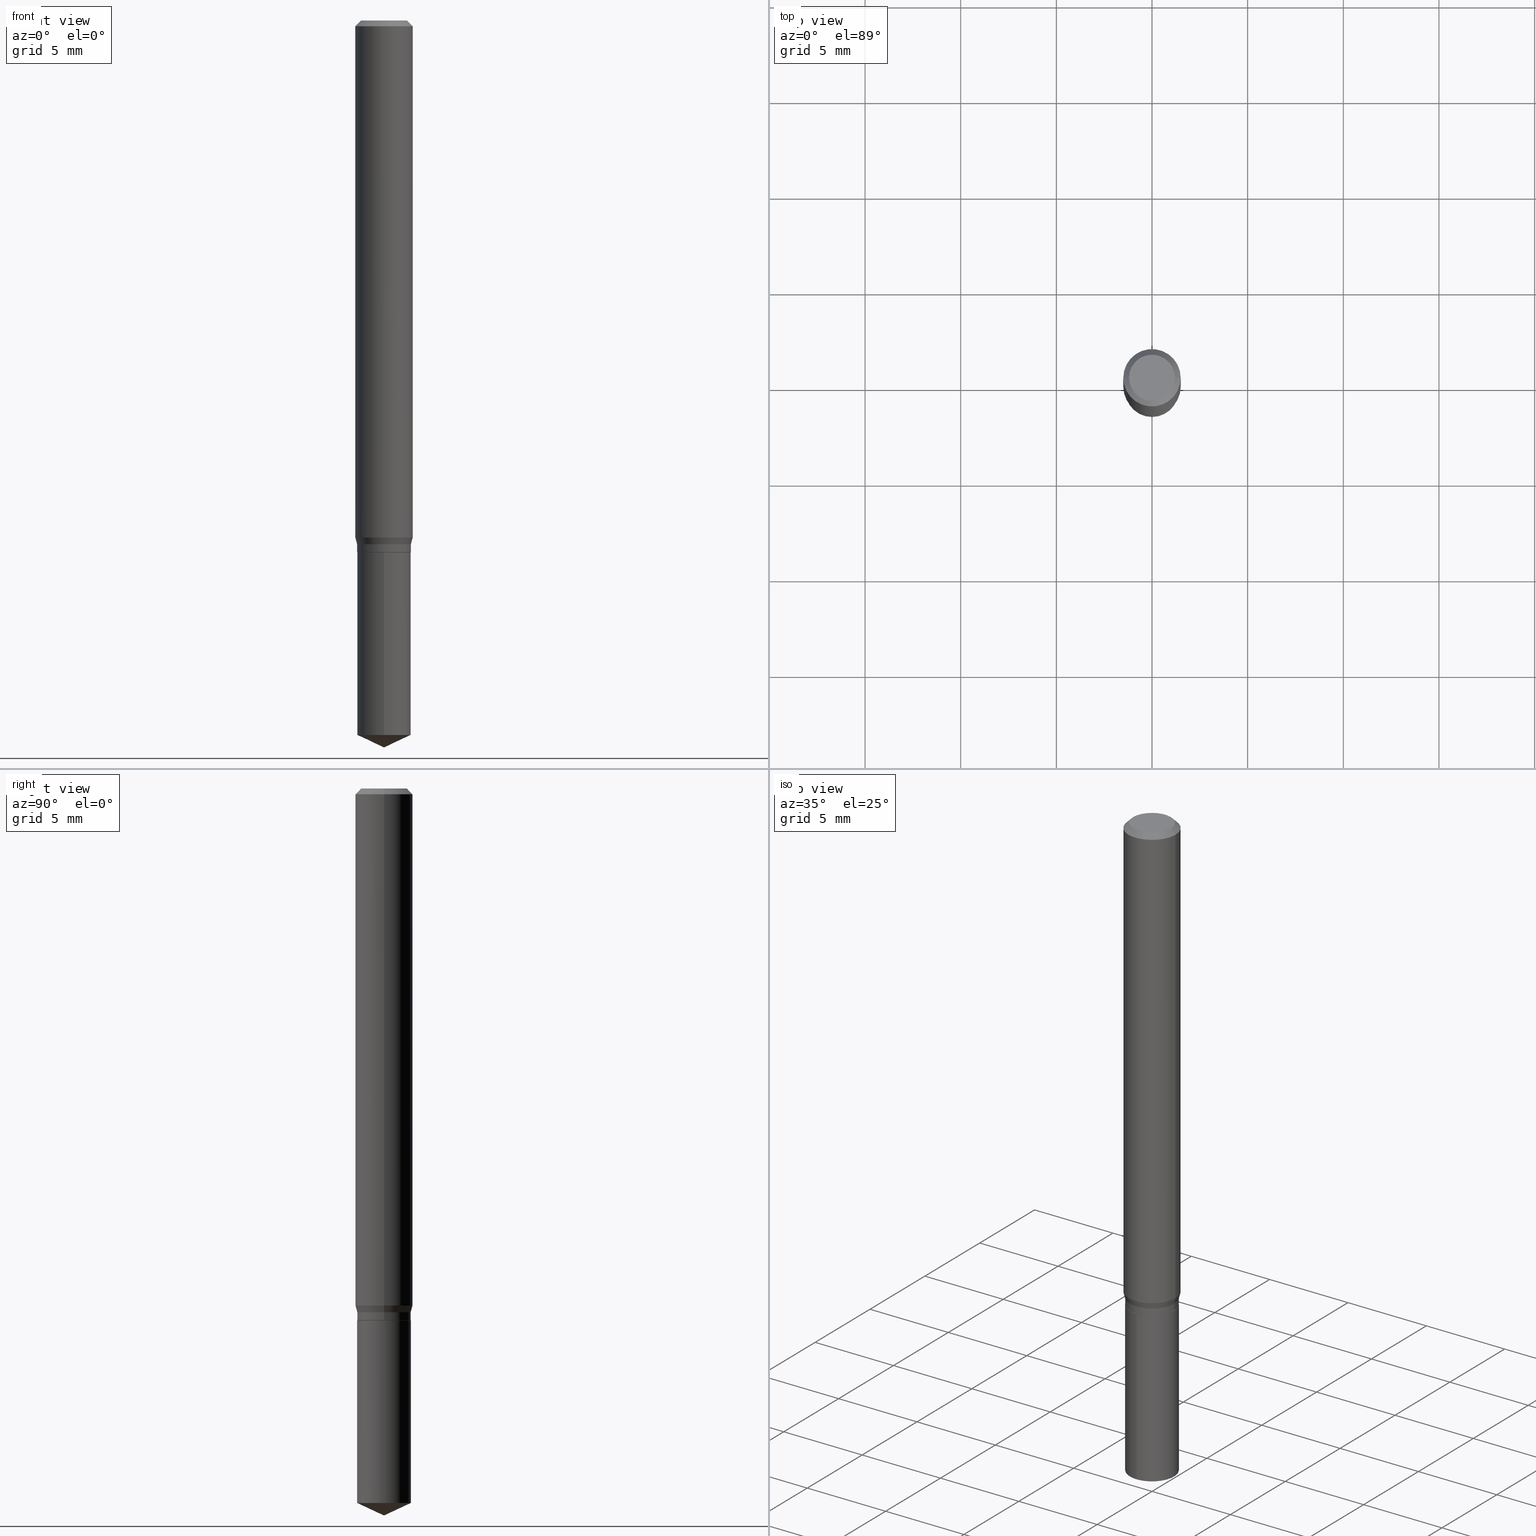
[diagram: canonical four-view strip — front | top / right | iso, engineering-drawing reading convention]
A machine part, canonical four-view strip (front | top / right | iso — engineering-drawing reading convention). The complete STEP part file that produces these views, byte-faithful:
ISO-10303-21;
HEADER;
FILE_DESCRIPTION (( 'STEP AP203' ),
    '1' );
FILE_NAME ('07698.STEP',
    '2024-04-24T01:15:40',
    ( '' ),
    ( '' ),
    'SwSTEP 2.0',
    'SolidWorks 2023',
    '' );
FILE_SCHEMA (( 'CONFIG_CONTROL_DESIGN' ));
ENDSEC;

DATA;
#1 = FACE_OUTER_BOUND ( 'NONE', #238, .T. ) ;
#2 = AXIS2_PLACEMENT_3D ( 'NONE', #296, #29, #189 ) ;
#3 = CONICAL_SURFACE ( 'NONE', #77, 0.05904999999999999832, 0.7853981633974452814 ) ;
#4 = EDGE_LOOP ( 'NONE', ( #207, #159 ) ) ;
#5 = AXIS2_PLACEMENT_3D ( 'NONE', #56, #379, #351 ) ;
#6 = APPROVAL_ROLE ( '' ) ;
#7 = DIRECTION ( 'NONE',  ( 6.982962677686265922E-15, 1.000000000000000000, -3.491495526022433599E-15 ) ) ;
#8 = EDGE_CURVE ( 'NONE', #319, #294, #315, .T. ) ;
#9 = VERTEX_POINT ( 'NONE', #331 ) ;
#10 = DATE_AND_TIME ( #280, #439 ) ;
#11 = ORIENTED_EDGE ( 'NONE', *, *, #465, .T. ) ;
#12 = PERSON_AND_ORGANIZATION ( #435, #224 ) ;
#13 = AXIS2_PLACEMENT_3D ( 'NONE', #111, #257, #182 ) ;
#14 = APPROVAL_ROLE ( '' ) ;
#15 = CC_DESIGN_APPROVAL ( #339, ( #424 ) ) ;
#16 = ADVANCED_FACE ( 'NONE', ( #75 ), #266, .T. ) ;
#17 = ORIENTED_EDGE ( 'NONE', *, *, #180, .F. ) ;
#18 = CARTESIAN_POINT ( 'NONE',  ( -3.861578360760237704E-16, -0.05530000000000383220, -1.094499999999999806 ) ) ;
#19 = CARTESIAN_POINT ( 'NONE',  ( 0.05905000000000013016, -4.126947734692995206E-15, -1.063904809471616364 ) ) ;
#20 = DIRECTION ( 'NONE',  ( -6.982962677686266711E-15, -1.000000000000000000, 2.470025310727181924E-15 ) ) ;
#21 = ORIENTED_EDGE ( 'NONE', *, *, #292, .T. ) ;
#22 = DIRECTION ( 'NONE',  ( 1.000000000000000000, -6.982962677686262766E-15, 0.000000000000000000 ) ) ;
#23 = LINE ( 'NONE', #185, #49 ) ;
#24 = FACE_OUTER_BOUND ( 'NONE', #456, .T. ) ;
#25 = CC_DESIGN_PERSON_AND_ORGANIZATION_ASSIGNMENT ( #60, #53, ( #361 ) ) ;
#26 = VERTEX_POINT ( 'NONE', #293 ) ;
#27 = FACE_OUTER_BOUND ( 'NONE', #97, .T. ) ;
#28 = LINE ( 'NONE', #109, #105 ) ;
#29 = DIRECTION ( 'NONE',  ( -2.445468806185136597E-29, 3.491481338843145583E-15, 1.000000000000000000 ) ) ;
#30 = LINE ( 'NONE', #393, #42 ) ;
#31 = AXIS2_PLACEMENT_3D ( 'NONE', #45, #120, #163 ) ;
#32 = EDGE_CURVE ( 'NONE', #418, #316, #369, .T. ) ;
#33 = DIRECTION ( 'NONE',  ( -2.445468806185136597E-29, 3.491481338843145583E-15, 1.000000000000000000 ) ) ;
#34 = VECTOR ( 'NONE', #282, 39.37007874015748143 ) ;
#35 = CARTESIAN_POINT ( 'NONE',  ( 3.658651059288795076E-29, -5.223626456482161457E-15, -1.496099999999999985 ) ) ;
#36 = DIRECTION ( 'NONE',  ( 2.438088387897960049E-29, -3.491481338843145188E-15, -1.000000000000000000 ) ) ;
#37 = ORIENTED_EDGE ( 'NONE', *, *, #225, .F. ) ;
#38 = CARTESIAN_POINT ( 'NONE',  ( 0.000000000000000000, 0.000000000000000000, 0.000000000000000000 ) ) ;
#39 = CARTESIAN_POINT ( 'NONE',  ( -0.05530000000000001581, -3.370537602263690973E-15, -1.077900000000000080 ) ) ;
#40 = CARTESIAN_POINT ( 'NONE',  ( -3.861578360760145013E-16, -0.05530000000000513671, -1.470313186504029090 ) ) ;
#41 = CONICAL_SURFACE ( 'NONE', #13, 0.05530000000000001581, 0.2617993877991497964 ) ;
#42 = VECTOR ( 'NONE', #333, 39.37007874015748143 ) ;
#43 = AXIS2_PLACEMENT_3D ( 'NONE', #448, #217, #360 ) ;
#44 = DIRECTION ( 'NONE',  ( -6.982962677686267499E-15, -1.000000000000000000, 3.520397390770354868E-15 ) ) ;
#45 = CARTESIAN_POINT ( 'NONE',  ( 0.000000000000000000, 0.000000000000000000, 0.000000000000000000 ) ) ;
#46 = MECHANICAL_CONTEXT ( 'NONE', #211, 'mechanical' ) ;
#47 = CARTESIAN_POINT ( 'NONE',  ( 0.05530000000000002275, -3.861578360760507396E-16, 2.696525757015153399E-30 ) ) ;
#48 = EDGE_CURVE ( 'NONE', #139, #197, #107, .T. ) ;
#49 = VECTOR ( 'NONE', #476, 39.37007874015748143 ) ;
#50 = ORIENTED_EDGE ( 'NONE', *, *, #193, .T. ) ;
#51 = PRODUCT_RELATED_PRODUCT_CATEGORY ( 'detail', '', ( #361 ) ) ;
#52 = EDGE_LOOP ( 'NONE', ( #289, #21, #358, #488 ) ) ;
#53 = PERSON_AND_ORGANIZATION_ROLE ( 'design_owner' ) ;
#54 = EDGE_LOOP ( 'NONE', ( #390, #255, #420, #436 ) ) ;
#55 = ADVANCED_FACE ( 'NONE', ( #227 ), #194, .T. ) ;
#56 = CARTESIAN_POINT ( 'NONE',  ( 0.000000000000000000, 0.000000000000000000, 0.000000000000000000 ) ) ;
#57 = DIRECTION ( 'NONE',  ( 1.000000000000000000, -6.982962677686263555E-15, 0.000000000000000000 ) ) ;
#58 = ORIENTED_EDGE ( 'NONE', *, *, #117, .F. ) ;
#59 = AXIS2_PLACEMENT_3D ( 'NONE', #81, #274, #267 ) ;
#60 = PERSON_AND_ORGANIZATION ( #435, #224 ) ;
#61 = LOCAL_TIME ( 21, 15, 40.00000000000000000, #123 ) ;
#62 = LINE ( 'NONE', #126, #466 ) ;
#63 = DIRECTION ( 'NONE',  ( -2.445468806185136597E-29, 3.491481338843145583E-15, 1.000000000000000000 ) ) ;
#64 = DIRECTION ( 'NONE',  ( -2.445468806185136877E-29, 3.491481338843145188E-15, 1.000000000000000000 ) ) ;
#65 = ADVANCED_FACE ( 'NONE', ( #24 ), #186, .T. ) ;
#66 = VERTEX_POINT ( 'NONE', #423 ) ;
#67 = AXIS2_PLACEMENT_3D ( 'NONE', #206, #210, #427 ) ;
#68 = AXIS2_PLACEMENT_3D ( 'NONE', #327, #321, #20 ) ;
#69 = AXIS2_PLACEMENT_3D ( 'NONE', #334, #480, #409 ) ;
#70 = LINE ( 'NONE', #478, #396 ) ;
#71 = ORIENTED_EDGE ( 'NONE', *, *, #154, .T. ) ;
#72 = CARTESIAN_POINT ( 'NONE',  ( 2.676565608369632355E-29, -3.821426325363822773E-15, -1.094500000000000028 ) ) ;
#73 = ORIENTED_EDGE ( 'NONE', *, *, #479, .F. ) ;
#74 = CARTESIAN_POINT ( 'NONE',  ( 0.05530000000000001581, -4.149625571215076488E-15, -1.077900000000000080 ) ) ;
#75 = FACE_OUTER_BOUND ( 'NONE', #52, .T. ) ;
#76 = AXIS2_PLACEMENT_3D ( 'NONE', #477, #149, #78 ) ;
#77 = AXIS2_PLACEMENT_3D ( 'NONE', #301, #237, #450 ) ;
#78 = DIRECTION ( 'NONE',  ( -6.982962677686266711E-15, -1.000000000000000000, 2.470025310727181924E-15 ) ) ;
#79 = DIRECTION ( 'NONE',  ( 1.000000000000000000, -6.982962677686263555E-15, 0.000000000000000000 ) ) ;
#80 = CYLINDRICAL_SURFACE ( 'NONE', #278, 0.05530000000000002275 ) ;
#81 = CARTESIAN_POINT ( 'NONE',  ( 7.715371704351580139E-30, -6.549535475971063666E-15, -1.094500000000000028 ) ) ;
#82 = EDGE_CURVE ( 'NONE', #197, #262, #144, .T. ) ;
#83 = DIRECTION ( 'NONE',  ( -2.445468806185136597E-29, 3.491481338843145583E-15, 1.000000000000000000 ) ) ;
#84 = CIRCLE ( 'NONE', #212, 0.05530000000000002275 ) ;
#85 = AXIS2_PLACEMENT_3D ( 'NONE', #160, #116, #304 ) ;
#86 = VERTEX_POINT ( 'NONE', #18 ) ;
#87 = CARTESIAN_POINT ( 'NONE',  ( -0.05905000000000013016, -3.295028303109280398E-15, -1.063904809471616364 ) ) ;
#88 = EDGE_LOOP ( 'NONE', ( #402, #178, #132, #103 ) ) ;
#89 = ADVANCED_FACE ( 'NONE', ( #27 ), #381, .T. ) ;
#90 = VERTEX_POINT ( 'NONE', #122 ) ;
#91 = COORDINATED_UNIVERSAL_TIME_OFFSET ( 5, 0, .BEHIND. ) ;
#92 = CIRCLE ( 'NONE', #368, 0.05530000000000000193 ) ;
#93 = VECTOR ( 'NONE', #467, 39.37007874015748143 ) ;
#94 = COORDINATED_UNIVERSAL_TIME_OFFSET ( 5, 0, .BEHIND. ) ;
#95 = DIRECTION ( 'NONE',  ( 1.000000000000000000, -6.982962677686266711E-15, 0.000000000000000000 ) ) ;
#96 = EDGE_CURVE ( 'NONE', #440, #262, #461, .T. ) ;
#97 = EDGE_LOOP ( 'NONE', ( #428, #221, #275 ) ) ;
#98 = PERSON_AND_ORGANIZATION ( #435, #224 ) ;
#99 = APPROVAL_STATUS ( 'not_yet_approved' ) ;
#100 = CARTESIAN_POINT ( 'NONE',  ( 2.676565608369631794E-29, -3.821426325363822773E-15, -1.094499999999999806 ) ) ;
#101 = ADVANCED_FACE ( 'NONE', ( #349 ), #80, .T. ) ;
#102 = DIRECTION ( 'NONE',  ( 0.7071067811864388819, -2.468850131081119129E-15, 0.7071067811866561525 ) ) ;
#103 = ORIENTED_EDGE ( 'NONE', *, *, #416, .F. ) ;
#104 = ORIENTED_EDGE ( 'NONE', *, *, #292, .F. ) ;
#105 = VECTOR ( 'NONE', #142, 39.37007874015748143 ) ;
#106 = APPROVAL_PERSON_ORGANIZATION ( #12, #339, #14 ) ;
#107 = CIRCLE ( 'NONE', #69, 0.05530000000000001581 ) ;
#108 = ORIENTED_EDGE ( 'NONE', *, *, #82, .T. ) ;
#109 = CARTESIAN_POINT ( 'NONE',  ( -0.05480000000000000149, -3.432048906167288157E-15, -1.094500000000000028 ) ) ;
#110 = VERTEX_POINT ( 'NONE', #169 ) ;
#111 = CARTESIAN_POINT ( 'NONE',  ( 2.635970826186958969E-29, -3.763467735139026488E-15, -1.077900000000000080 ) ) ;
#112 = ORIENTED_EDGE ( 'NONE', *, *, #82, .F. ) ;
#113 =( NAMED_UNIT ( * ) SI_UNIT ( $, .STERADIAN. ) SOLID_ANGLE_UNIT ( ) );
#114 = AXIS2_PLACEMENT_3D ( 'NONE', #329, #33, #190 ) ;
#115 = AXIS2_PLACEMENT_3D ( 'NONE', #100, #179, #7 ) ;
#116 = DIRECTION ( 'NONE',  ( -2.445468806185136597E-29, 3.491481338843145583E-15, 1.000000000000000000 ) ) ;
#117 = EDGE_CURVE ( 'NONE', #341, #66, #375, .T. ) ;
#118 = CARTESIAN_POINT ( 'NONE',  ( 0.04724000000000000421, -3.852183633974369345E-16, -3.380025165621689721E-19 ) ) ;
#119 = ORIENTED_EDGE ( 'NONE', *, *, #48, .T. ) ;
#120 = DIRECTION ( 'NONE',  ( -2.445468806185136597E-29, 3.491481338843145583E-15, 1.000000000000000000 ) ) ;
#121 = AXIS2_PLACEMENT_3D ( 'NONE', #226, #337, #411 ) ;
#122 = CARTESIAN_POINT ( 'NONE',  ( -0.05530000000000002275, -3.398644027041377969E-15, -1.093999999999999861 ) ) ;
#123 = COORDINATED_UNIVERSAL_TIME_OFFSET ( 5, 0, .BEHIND. ) ;
#124 = DIRECTION ( 'NONE',  ( -2.445468806185136597E-29, 3.491481338843145583E-15, 1.000000000000000000 ) ) ;
#125 = ORIENTED_EDGE ( 'NONE', *, *, #465, .F. ) ;
#126 = CARTESIAN_POINT ( 'NONE',  ( 0.05480000000000000149, -4.204092680101030555E-15, -1.094500000000000028 ) ) ;
#127 = PERSON_AND_ORGANIZATION_ROLE ( 'creator' ) ;
#128 = CC_DESIGN_APPROVAL ( #489, ( #146 ) ) ;
#129 = ORIENTED_EDGE ( 'NONE', *, *, #281, .F. ) ;
#130 = APPROVAL_DATE_TIME ( #310, #300 ) ;
#131 = LINE ( 'NONE', #47, #34 ) ;
#132 = ORIENTED_EDGE ( 'NONE', *, *, #479, .T. ) ;
#133 = APPROVAL_DATE_TIME ( #457, #489 ) ;
#134 = CONICAL_SURFACE ( 'NONE', #408, 0.05480000000000000149, 0.7853981633972946241 ) ;
#135 = CONICAL_SURFACE ( 'NONE', #216, 0.05530000000000001581, 0.2617993877991497964 ) ;
#136 = EDGE_CURVE ( 'NONE', #294, #319, #338, .T. ) ;
#137 = CARTESIAN_POINT ( 'NONE',  ( 2.635970826186958969E-29, -3.763467735139026488E-15, -1.077900000000000080 ) ) ;
#138 = CARTESIAN_POINT ( 'NONE',  ( 3.595601309791772378E-29, -5.133576384662875507E-15, -1.470313186504029312 ) ) ;
#139 = VERTEX_POINT ( 'NONE', #177 ) ;
#140 = CARTESIAN_POINT ( 'NONE',  ( 0.05904999999999999832, -4.463468013801466955E-16, -0.01181000000000007218 ) ) ;
#141 = ADVANCED_FACE ( 'NONE', ( #318 ), #312, .T. ) ;
#142 = DIRECTION ( 'NONE',  ( -0.7071067811864388819, 7.493145998869961307E-15, 0.7071067811866561525 ) ) ;
#143 = ORIENTED_EDGE ( 'NONE', *, *, #96, .T. ) ;
#144 = LINE ( 'NONE', #39, #156 ) ;
#145 = VECTOR ( 'NONE', #432, 39.37007874015748143 ) ;
#146 = SECURITY_CLASSIFICATION ( '', '', #166 ) ;
#147 = CLOSED_SHELL ( 'NONE', ( #344, #328, #65, #276, #308, #101, #230, #55, #141, #372, #285, #161 ) ) ;
#148 = FACE_OUTER_BOUND ( 'NONE', #343, .T. ) ;
#149 = DIRECTION ( 'NONE',  ( -2.445458899330790108E-29, 3.491495526022433205E-15, 1.000000000000000000 ) ) ;
#150 = ORIENTED_EDGE ( 'NONE', *, *, #431, .F. ) ;
#151 =( CONVERSION_BASED_UNIT ( 'INCH', #155 ) LENGTH_UNIT ( ) NAMED_UNIT ( #288 ) );
#152 = DIRECTION ( 'NONE',  ( -2.445468806185136597E-29, 3.491481338843145583E-15, 1.000000000000000000 ) ) ;
#153 = ORIENTED_EDGE ( 'NONE', *, *, #392, .T. ) ;
#154 = EDGE_CURVE ( 'NONE', #294, #371, #62, .T. ) ;
#155 = LENGTH_MEASURE_WITH_UNIT ( LENGTH_MEASURE( 0.02539999999999999897 ), #469 );
#156 = VECTOR ( 'NONE', #299, 39.37007874015748143 ) ;
#157 = ADVANCED_BREP_SHAPE_REPRESENTATION ( '07698', ( #384, #401, #5 ), #314 ) ;
#158 = DIRECTION ( 'NONE',  ( -6.982962677686266711E-15, -1.000000000000000000, 2.470025310727181924E-15 ) ) ;
#159 = ORIENTED_EDGE ( 'NONE', *, *, #8, .F. ) ;
#160 = CARTESIAN_POINT ( 'NONE',  ( 2.601746024313178351E-29, -3.714603788575621075E-15, -1.063904809471616364 ) ) ;
#161 = ADVANCED_FACE ( 'NONE', ( #470 ), #240, .T. ) ;
#162 = ORIENTED_EDGE ( 'NONE', *, *, #154, .F. ) ;
#163 = DIRECTION ( 'NONE',  ( 1.000000000000000000, -6.982962677686267499E-15, 4.876176775795935232E-29 ) ) ;
#164 = AXIS2_PLACEMENT_3D ( 'NONE', #342, #453, #158 ) ;
#165 = CARTESIAN_POINT ( 'NONE',  ( -9.261924752013118283E-28, 1.322368428517963298E-13, 37.87397874015748300 ) ) ;
#166 = SECURITY_CLASSIFICATION_LEVEL ( 'unclassified' ) ;
#167 = LINE ( 'NONE', #309, #484 ) ;
#168 = DATE_TIME_ROLE ( 'creation_date' ) ;
#169 = CARTESIAN_POINT ( 'NONE',  ( -0.05904999999999999832, -1.458343606127338923E-15, -0.01181000000000007218 ) ) ;
#170 = EDGE_LOOP ( 'NONE', ( #246, #236, #363, #279 ) ) ;
#171 = DATE_AND_TIME ( #462, #61 ) ;
#172 = EDGE_CURVE ( 'NONE', #418, #9, #443, .T. ) ;
#173 = DIRECTION ( 'NONE',  ( -2.445468806185136597E-29, 3.491481338843145583E-15, 1.000000000000000000 ) ) ;
#174 = AXIS2_PLACEMENT_3D ( 'NONE', #430, #320, #283 ) ;
#175 = APPROVAL_PERSON_ORGANIZATION ( #201, #300, #6 ) ;
#176 = PERSON_AND_ORGANIZATION ( #435, #224 ) ;
#177 = CARTESIAN_POINT ( 'NONE',  ( 0.05530000000000001581, -4.149625571215076488E-15, -1.077900000000000080 ) ) ;
#178 = ORIENTED_EDGE ( 'NONE', *, *, #364, .T. ) ;
#179 = DIRECTION ( 'NONE',  ( 2.445458899330789267E-29, -3.491495526022433599E-15, -1.000000000000000000 ) ) ;
#180 = EDGE_CURVE ( 'NONE', #458, #110, #232, .T. ) ;
#181 = PRODUCT_DEFINITION_SHAPE ( 'NONE', 'NONE',  #424 ) ;
#182 = DIRECTION ( 'NONE',  ( 1.000000000000000000, -6.982962677686262766E-15, 0.000000000000000000 ) ) ;
#183 = ORIENTED_EDGE ( 'NONE', *, *, #96, .F. ) ;
#184 = LOCAL_TIME ( 21, 15, 40.00000000000000000, #353 ) ;
#185 = CARTESIAN_POINT ( 'NONE',  ( -0.05904999999999999832, 3.711095515056362547E-16, -0.01181000000000007218 ) ) ;
#186 = CYLINDRICAL_SURFACE ( 'NONE', #202, 0.05905000000000006771 ) ;
#187 = EDGE_CURVE ( 'NONE', #90, #197, #70, .T. ) ;
#188 = ORIENTED_EDGE ( 'NONE', *, *, #472, .F. ) ;
#189 = DIRECTION ( 'NONE',  ( 1.000000000000000000, -6.982962677686263555E-15, 0.000000000000000000 ) ) ;
#190 = DIRECTION ( 'NONE',  ( 1.000000000000000000, -6.982962677686266711E-15, 0.000000000000000000 ) ) ;
#191 = DIRECTION ( 'NONE',  ( -6.328713451373405666E-15, -0.9063077870366537114, 0.4226182617406913367 ) ) ;
#192 = DIRECTION ( 'NONE',  ( 1.000000000000000000, -6.982962677686262766E-15, 0.000000000000000000 ) ) ;
#193 = EDGE_CURVE ( 'NONE', #262, #110, #291, .T. ) ;
#194 = CYLINDRICAL_SURFACE ( 'NONE', #43, 0.05905000000000006771 ) ;
#195 = CARTESIAN_POINT ( 'NONE',  ( -9.261924752013118283E-28, 1.322368428517963298E-13, 37.87397874015748300 ) ) ;
#196 = CARTESIAN_POINT ( 'NONE',  ( 2.675342873966538993E-29, -3.819680584694400481E-15, -1.093999999999999861 ) ) ;
#197 = VERTEX_POINT ( 'NONE', #365 ) ;
#198 = EDGE_CURVE ( 'NONE', #66, #341, #254, .T. ) ;
#199 = CARTESIAN_POINT ( 'NONE',  ( 2.635970826186958969E-29, -3.763467735139026488E-15, -1.077900000000000080 ) ) ;
#200 = DIRECTION ( 'NONE',  ( 1.000000000000000000, -6.982962677686269866E-15, 0.000000000000000000 ) ) ;
#201 = PERSON_AND_ORGANIZATION ( #435, #224 ) ;
#202 = AXIS2_PLACEMENT_3D ( 'NONE', #270, #235, #273 ) ;
#203 = CC_DESIGN_SECURITY_CLASSIFICATION ( #146, ( #447 ) ) ;
#204 = ORIENTED_EDGE ( 'NONE', *, *, #486, .T. ) ;
#205 = PERSON_AND_ORGANIZATION_ROLE ( 'creator' ) ;
#206 = CARTESIAN_POINT ( 'NONE',  ( 8.265746106709734507E-48, -1.180129479067563789E-33, -3.380025165646692144E-19 ) ) ;
#207 = ORIENTED_EDGE ( 'NONE', *, *, #136, .F. ) ;
#208 = COORDINATED_UNIVERSAL_TIME_OFFSET ( 5, 0, .BEHIND. ) ;
#209 = FACE_OUTER_BOUND ( 'NONE', #350, .T. ) ;
#210 = DIRECTION ( 'NONE',  ( -2.445468806185136597E-29, 3.491481338843145583E-15, 1.000000000000000000 ) ) ;
#211 = APPLICATION_CONTEXT ( 'configuration controlled 3d designs of mechanical parts and assemblies' ) ;
#212 = AXIS2_PLACEMENT_3D ( 'NONE', #196, #152, #234 ) ;
#213 = EDGE_CURVE ( 'NONE', #319, #90, #28, .T. ) ;
#214 = ORIENTED_EDGE ( 'NONE', *, *, #242, .T. ) ;
#215 = DIRECTION ( 'NONE',  ( 1.000000000000000000, -6.982962677686263555E-15, 0.000000000000000000 ) ) ;
#216 = AXIS2_PLACEMENT_3D ( 'NONE', #199, #83, #192 ) ;
#217 = DIRECTION ( 'NONE',  ( -2.445468806185136597E-29, 3.491481338843145583E-15, 1.000000000000000000 ) ) ;
#218 = UNCERTAINTY_MEASURE_WITH_UNIT (LENGTH_MEASURE( 1.000000000000000082E-05 ), #151, 'distance_accuracy_value', 'NONE');
#219 = ORIENTED_EDGE ( 'NONE', *, *, #247, .F. ) ;
#220 = DIRECTION ( 'NONE',  ( -2.445458899330790108E-29, 3.491495526022433205E-15, 1.000000000000000000 ) ) ;
#221 = ORIENTED_EDGE ( 'NONE', *, *, #172, .T. ) ;
#222 = ORIENTED_EDGE ( 'NONE', *, *, #198, .T. ) ;
#223 = CLOSED_SHELL ( 'NONE', ( #323, #89, #260, #16, #445 ) ) ;
#224 = ORGANIZATION ( 'UNSPECIFIED', 'UNSPECIFIED', '' ) ;
#225 = EDGE_CURVE ( 'NONE', #316, #86, #287, .T. ) ;
#226 = CARTESIAN_POINT ( 'NONE',  ( 3.595601309791772378E-29, -5.133576384662875507E-15, -1.470313186504029312 ) ) ;
#227 = FACE_OUTER_BOUND ( 'NONE', #88, .T. ) ;
#228 = CARTESIAN_POINT ( 'NONE',  ( 4.132873053354867254E-48, -5.900647395337818946E-34, -1.690012582823346072E-19 ) ) ;
#229 = DIRECTION ( 'NONE',  ( -2.445458899330790108E-29, 3.491495526022433205E-15, 1.000000000000000000 ) ) ;
#230 = ADVANCED_FACE ( 'NONE', ( #438 ), #41, .T. ) ;
#231 = EDGE_LOOP ( 'NONE', ( #112, #204, #474, #485 ) ) ;
#232 = CIRCLE ( 'NONE', #114, 0.05904999999999999832 ) ;
#233 = CIRCLE ( 'NONE', #332, 0.05530000000000001581 ) ;
#234 = DIRECTION ( 'NONE',  ( 1.000000000000000000, -6.982962677686269866E-15, 0.000000000000000000 ) ) ;
#235 = DIRECTION ( 'NONE',  ( -2.445468806185136597E-29, 3.491481338843145583E-15, 1.000000000000000000 ) ) ;
#236 = ORIENTED_EDGE ( 'NONE', *, *, #198, .F. ) ;
#237 = DIRECTION ( 'NONE',  ( 2.445468806185136597E-29, -3.491481338843145583E-15, -1.000000000000000000 ) ) ;
#238 = EDGE_LOOP ( 'NONE', ( #119, #108, #183, #188 ) ) ;
#239 = DATE_TIME_ROLE ( 'classification_date' ) ;
#240 = CONICAL_SURFACE ( 'NONE', #421, 0.05480000000000000149, 0.7853981633972946241 ) ;
#241 = DIRECTION ( 'NONE',  ( -6.982962677686266711E-15, -1.000000000000000000, 2.470025310727181924E-15 ) ) ;
#242 = EDGE_CURVE ( 'NONE', #316, #9, #92, .T. ) ;
#243 = CARTESIAN_POINT ( 'NONE',  ( 3.658651059288794515E-29, -5.223626456482161457E-15, -1.496099999999999985 ) ) ;
#244 = ORIENTED_EDGE ( 'NONE', *, *, #357, .F. ) ;
#245 = CALENDAR_DATE ( 2024, 23, 4 ) ;
#246 = ORIENTED_EDGE ( 'NONE', *, *, #460, .F. ) ;
#247 = EDGE_CURVE ( 'NONE', #66, #110, #23, .T. ) ;
#248 = DIRECTION ( 'NONE',  ( -2.445468806185136597E-29, 3.491481338843145583E-15, 1.000000000000000000 ) ) ;
#249 = AXIS2_PLACEMENT_3D ( 'NONE', #195, #229, #44 ) ;
#250 = CIRCLE ( 'NONE', #348, 0.05904999999999999832 ) ;
#251 = EDGE_LOOP ( 'NONE', ( #58, #286, #259, #219 ) ) ;
#252 = CARTESIAN_POINT ( 'NONE',  ( -0.05905000000000006771, 4.195754854663396409E-16, -2.904631170795525045E-30 ) ) ;
#253 = CC_DESIGN_PERSON_AND_ORGANIZATION_ASSIGNMENT ( #98, #205, ( #424 ) ) ;
#254 = CIRCLE ( 'NONE', #437, 0.04724000000000000421 ) ;
#255 = ORIENTED_EDGE ( 'NONE', *, *, #281, .T. ) ;
#256 = DIRECTION ( 'NONE',  ( 0.7071067811865453523, -7.319954787623248157E-15, -0.7071067811865496822 ) ) ;
#257 = DIRECTION ( 'NONE',  ( -2.445468806185136597E-29, 3.491481338843145583E-15, 1.000000000000000000 ) ) ;
#258 = ORIENTED_EDGE ( 'NONE', *, *, #117, .T. ) ;
#259 = ORIENTED_EDGE ( 'NONE', *, *, #180, .T. ) ;
#260 = ADVANCED_FACE ( 'NONE', ( #148 ), #475, .T. ) ;
#261 = DIRECTION ( 'NONE',  ( -2.445468806185136597E-29, 3.491481338843145583E-15, 1.000000000000000000 ) ) ;
#262 = VERTEX_POINT ( 'NONE', #87 ) ;
#263 = AXIS2_PLACEMENT_3D ( 'NONE', #446, #378, #200 ) ;
#264 = CARTESIAN_POINT ( 'NONE',  ( 2.676565608369631794E-29, -3.821426325363822773E-15, -1.094499999999999806 ) ) ;
#265 = DIRECTION ( 'NONE',  ( -6.982962677686267499E-15, -1.000000000000000000, 3.520397390770354868E-15 ) ) ;
#266 = CYLINDRICAL_SURFACE ( 'NONE', #76, 0.05530000000000000193 ) ;
#267 = DIRECTION ( 'NONE',  ( 1.000000000000000000, -6.982962677686265922E-15, 4.876176775795935793E-29 ) ) ;
#268 = APPLICATION_PROTOCOL_DEFINITION ( 'international standard', 'config_control_design', 1994, #211 ) ;
#269 = CARTESIAN_POINT ( 'NONE',  ( 2.676565608369632355E-29, -3.821426325363822773E-15, -1.094500000000000028 ) ) ;
#270 = CARTESIAN_POINT ( 'NONE',  ( 0.000000000000000000, 0.000000000000000000, 0.000000000000000000 ) ) ;
#271 = VECTOR ( 'NONE', #256, 39.37007874015748143 ) ;
#272 = CARTESIAN_POINT ( 'NONE',  ( 2.601746024313178351E-29, -3.714603788575621075E-15, -1.063904809471616364 ) ) ;
#273 = DIRECTION ( 'NONE',  ( 1.000000000000000000, -6.982962677686266711E-15, 4.876176775795936353E-29 ) ) ;
#274 = DIRECTION ( 'NONE',  ( -2.438088387897960049E-29, 3.491481338843145188E-15, 1.000000000000000000 ) ) ;
#275 = ORIENTED_EDGE ( 'NONE', *, *, #242, .F. ) ;
#276 = ADVANCED_FACE ( 'NONE', ( #1 ), #135, .T. ) ;
#277 = SHAPE_DEFINITION_REPRESENTATION ( #181, #157 ) ;
#278 = AXIS2_PLACEMENT_3D ( 'NONE', #38, #374, #302 ) ;
#279 = ORIENTED_EDGE ( 'NONE', *, *, #416, .T. ) ;
#280 = CALENDAR_DATE ( 2024, 23, 4 ) ;
#281 = EDGE_CURVE ( 'NONE', #90, #371, #84, .T. ) ;
#282 = DIRECTION ( 'NONE',  ( -2.445468806185136877E-29, 3.491481338843145188E-15, 1.000000000000000000 ) ) ;
#283 = DIRECTION ( 'NONE',  ( -1.000000000000000000, 6.982962677686266711E-15, 0.000000000000000000 ) ) ;
#284 = VECTOR ( 'NONE', #404, 39.37007874015748143 ) ;
#285 = ADVANCED_FACE ( 'NONE', ( #295 ), #298, .F. ) ;
#286 = ORIENTED_EDGE ( 'NONE', *, *, #460, .T. ) ;
#287 = LINE ( 'NONE', #407, #284 ) ;
#288 = DIMENSIONAL_EXPONENTS ( 1.000000000000000000, 0.000000000000000000, 0.000000000000000000, 0.000000000000000000, 0.000000000000000000, 0.000000000000000000, 0.000000000000000000 ) ;
#289 = ORIENTED_EDGE ( 'NONE', *, *, #451, .F. ) ;
#290 = AXIS2_PLACEMENT_3D ( 'NONE', #264, #481, #241 ) ;
#291 = LINE ( 'NONE', #252, #415 ) ;
#292 = EDGE_CURVE ( 'NONE', #9, #316, #330, .T. ) ;
#293 = CARTESIAN_POINT ( 'NONE',  ( 3.929301328753713590E-16, 0.05529999999999617860, -1.094500000000000028 ) ) ;
#294 = VERTEX_POINT ( 'NONE', #413 ) ;
#295 = FACE_OUTER_BOUND ( 'NONE', #4, .T. ) ;
#296 = CARTESIAN_POINT ( 'NONE',  ( 2.676565608369632355E-29, -3.821426325363822773E-15, -1.094500000000000028 ) ) ;
#297 = AXIS2_PLACEMENT_3D ( 'NONE', #389, #248, #57 ) ;
#298 = PLANE ( 'NONE',  #59 ) ;
#299 = DIRECTION ( 'NONE',  ( -0.2588190451025211281, 5.211531920934548675E-15, 0.9659258262890682012 ) ) ;
#300 = APPROVAL ( #464, 'UNSPECIFIED' ) ;
#301 = CARTESIAN_POINT ( 'NONE',  ( 2.888098660104664204E-31, -4.123439461173780263E-17, -0.01181000000000007218 ) ) ;
#302 = DIRECTION ( 'NONE',  ( 1.000000000000000000, -6.982962677686267499E-15, 4.876176775795935232E-29 ) ) ;
#303 = EDGE_LOOP ( 'NONE', ( #471, #326, #244, #162 ) ) ;
#304 = DIRECTION ( 'NONE',  ( 1.000000000000000000, -6.982962677686265133E-15, 0.000000000000000000 ) ) ;
#305 = LOCAL_TIME ( 21, 15, 40.00000000000000000, #91 ) ;
#306 = CARTESIAN_POINT ( 'NONE',  ( 0.05530000000000002275, -4.205838420770451270E-15, -1.093999999999999861 ) ) ;
#307 = DIRECTION ( 'NONE',  ( -2.445458899330790108E-29, 3.491495526022433205E-15, 1.000000000000000000 ) ) ;
#308 = ADVANCED_FACE ( 'NONE', ( #419 ), #373, .T. ) ;
#309 = CARTESIAN_POINT ( 'NONE',  ( 3.929301328753621392E-16, 0.05529999999999617860, -1.094500000000000028 ) ) ;
#310 = DATE_AND_TIME ( #311, #184 ) ;
#311 = CALENDAR_DATE ( 2024, 23, 4 ) ;
#312 = CONICAL_SURFACE ( 'NONE', #174, 0.05904999999999999832, 0.7853981633974452814 ) ;
#313 = CC_DESIGN_DATE_AND_TIME_ASSIGNMENT ( #429, #239, ( #146 ) ) ;
#314 =( GEOMETRIC_REPRESENTATION_CONTEXT ( 3 ) GLOBAL_UNCERTAINTY_ASSIGNED_CONTEXT ( ( #218 ) ) GLOBAL_UNIT_ASSIGNED_CONTEXT ( ( #151, #406, #113 ) ) REPRESENTATION_CONTEXT ( 'NONE', 'WORKASPACE' ) );
#315 = CIRCLE ( 'NONE', #2, 0.05480000000000000149 ) ;
#316 = VERTEX_POINT ( 'NONE', #40 ) ;
#317 = PERSON_AND_ORGANIZATION ( #435, #224 ) ;
#318 = FACE_OUTER_BOUND ( 'NONE', #170, .T. ) ;
#319 = VERTEX_POINT ( 'NONE', #340 ) ;
#320 = DIRECTION ( 'NONE',  ( 2.445468806185136597E-29, -3.491481338843145583E-15, -1.000000000000000000 ) ) ;
#321 = DIRECTION ( 'NONE',  ( -2.445458899330790108E-29, 3.491495526022433205E-15, 1.000000000000000000 ) ) ;
#322 = AXIS2_PLACEMENT_3D ( 'NONE', #165, #307, #265 ) ;
#323 = ADVANCED_FACE ( 'NONE', ( #487 ), #414, .T. ) ;
#324 = DIRECTION ( 'NONE',  ( -2.445468806185136597E-29, 3.491481338843145583E-15, 1.000000000000000000 ) ) ;
#325 = ORIENTED_EDGE ( 'NONE', *, *, #32, .T. ) ;
#326 = ORIENTED_EDGE ( 'NONE', *, *, #213, .T. ) ;
#327 = CARTESIAN_POINT ( 'NONE',  ( 2.676565608369631794E-29, -3.821426325363822773E-15, -1.094499999999999806 ) ) ;
#328 = ADVANCED_FACE ( 'NONE', ( #483 ), #3, .T. ) ;
#329 = CARTESIAN_POINT ( 'NONE',  ( 2.888098660104664204E-31, -4.123439461173780263E-17, -0.01181000000000007218 ) ) ;
#330 = CIRCLE ( 'NONE', #121, 0.05530000000000000193 ) ;
#331 = CARTESIAN_POINT ( 'NONE',  ( 3.929301328753713097E-16, 0.05529999999999486715, -1.470313186504029535 ) ) ;
#332 = AXIS2_PLACEMENT_3D ( 'NONE', #137, #63, #22 ) ;
#333 = DIRECTION ( 'NONE',  ( -2.445468806185136877E-29, 3.491481338843145188E-15, 1.000000000000000000 ) ) ;
#334 = CARTESIAN_POINT ( 'NONE',  ( 2.635970826186958969E-29, -3.763467735139026488E-15, -1.077900000000000080 ) ) ;
#335 = DIRECTION ( 'NONE',  ( -1.000000000000000000, 6.982962677686265922E-15, -4.876176775795935793E-29 ) ) ;
#336 = EDGE_LOOP ( 'NONE', ( #222, #258 ) ) ;
#337 = DIRECTION ( 'NONE',  ( -2.445458899330790108E-29, 3.491495526022433205E-15, 1.000000000000000000 ) ) ;
#338 = CIRCLE ( 'NONE', #297, 0.05480000000000000149 ) ;
#339 = APPROVAL ( #354, 'UNSPECIFIED' ) ;
#340 = CARTESIAN_POINT ( 'NONE',  ( -0.05480000000000000149, -3.429399678993176561E-15, -1.094500000000000028 ) ) ;
#341 = VERTEX_POINT ( 'NONE', #118 ) ;
#342 = CARTESIAN_POINT ( 'NONE',  ( 2.676565608369631794E-29, -3.821426325363822773E-15, -1.094499999999999806 ) ) ;
#343 = EDGE_LOOP ( 'NONE', ( #482, #325, #104 ) ) ;
#344 = ADVANCED_FACE ( 'NONE', ( #377 ), #134, .T. ) ;
#345 = VECTOR ( 'NONE', #191, 39.37007874015748143 ) ;
#346 = APPROVAL_DATE_TIME ( #171, #339 ) ;
#347 = CIRCLE ( 'NONE', #263, 0.05530000000000002275 ) ;
#348 = AXIS2_PLACEMENT_3D ( 'NONE', #380, #173, #95 ) ;
#349 = FACE_OUTER_BOUND ( 'NONE', #54, .T. ) ;
#350 = EDGE_LOOP ( 'NONE', ( #11, #153 ) ) ;
#351 = DIRECTION ( 'NONE',  ( 1.000000000000000000, 0.000000000000000000, 0.000000000000000000 ) ) ;
#352 = CC_DESIGN_PERSON_AND_ORGANIZATION_ASSIGNMENT ( #387, #459, ( #447 ) ) ;
#353 = COORDINATED_UNIVERSAL_TIME_OFFSET ( 5, 0, .BEHIND. ) ;
#354 = APPROVAL_STATUS ( 'not_yet_approved' ) ;
#355 = CC_DESIGN_APPROVAL ( #300, ( #447 ) ) ;
#356 = CARTESIAN_POINT ( 'NONE',  ( 3.658672935554494692E-29, -5.223595400746700193E-15, -1.496099999999999985 ) ) ;
#357 = EDGE_CURVE ( 'NONE', #371, #90, #347, .T. ) ;
#358 = ORIENTED_EDGE ( 'NONE', *, *, #225, .T. ) ;
#359 = DIRECTION ( 'NONE',  ( -2.445468806185136877E-29, 3.491481338843145188E-15, 1.000000000000000000 ) ) ;
#360 = DIRECTION ( 'NONE',  ( 1.000000000000000000, -6.982962677686266711E-15, 4.876176775795936353E-29 ) ) ;
#361 = PRODUCT ( '07698', '07698', '', ( #46 ) ) ;
#362 = CARTESIAN_POINT ( 'NONE',  ( 8.265746106709734507E-48, -1.180129479067563789E-33, -3.380025165646692144E-19 ) ) ;
#363 = ORIENTED_EDGE ( 'NONE', *, *, #247, .T. ) ;
#364 = EDGE_CURVE ( 'NONE', #262, #440, #410, .T. ) ;
#365 = CARTESIAN_POINT ( 'NONE',  ( -0.05530000000000001581, -3.398644027041377969E-15, -1.077900000000000080 ) ) ;
#366 = ORIENTED_EDGE ( 'NONE', *, *, #187, .T. ) ;
#367 = DIRECTION ( 'NONE',  ( -2.445458899330790108E-29, 3.491495526022433599E-15, 1.000000000000000000 ) ) ;
#368 = AXIS2_PLACEMENT_3D ( 'NONE', #138, #220, #394 ) ;
#369 = LINE ( 'NONE', #35, #345 ) ;
#370 = PLANE ( 'NONE',  #383 ) ;
#371 = VERTEX_POINT ( 'NONE', #306 ) ;
#372 = ADVANCED_FACE ( 'NONE', ( #455 ), #370, .F. ) ;
#373 = CYLINDRICAL_SURFACE ( 'NONE', #31, 0.05530000000000002275 ) ;
#374 = DIRECTION ( 'NONE',  ( -2.445468806185136597E-29, 3.491481338843145583E-15, 1.000000000000000000 ) ) ;
#375 = CIRCLE ( 'NONE', #67, 0.04724000000000000421 ) ;
#376 = CIRCLE ( 'NONE', #290, 0.05530000000000000193 ) ;
#377 = FACE_OUTER_BOUND ( 'NONE', #303, .T. ) ;
#378 = DIRECTION ( 'NONE',  ( -2.445468806185136597E-29, 3.491481338843145583E-15, 1.000000000000000000 ) ) ;
#379 = DIRECTION ( 'NONE',  ( 0.000000000000000000, 0.000000000000000000, 1.000000000000000000 ) ) ;
#380 = CARTESIAN_POINT ( 'NONE',  ( 2.888098660104664204E-31, -4.123439461173780263E-17, -0.01181000000000007218 ) ) ;
#381 = CONICAL_SURFACE ( 'NONE', #322, 84.42940631927670836, 1.134464013796326665 ) ;
#382 = CALENDAR_DATE ( 2024, 23, 4 ) ;
#383 = AXIS2_PLACEMENT_3D ( 'NONE', #228, #36, #335 ) ;
#384 = MANIFOLD_SOLID_BREP ( 'Body-Move/Copy2[1]', #223 ) ;
#385 = APPLICATION_PROTOCOL_DEFINITION ( 'international standard', 'config_control_design', 1994, #449 ) ;
#386 = CC_DESIGN_DATE_AND_TIME_ASSIGNMENT ( #10, #168, ( #424 ) ) ;
#387 = PERSON_AND_ORGANIZATION ( #435, #224 ) ;
#388 = PLANE ( 'NONE',  #115 ) ;
#389 = CARTESIAN_POINT ( 'NONE',  ( 2.676565608369632355E-29, -3.821426325363822773E-15, -1.094500000000000028 ) ) ;
#390 = ORIENTED_EDGE ( 'NONE', *, *, #187, .F. ) ;
#391 = APPROVAL_ROLE ( '' ) ;
#392 = EDGE_CURVE ( 'NONE', #26, #86, #376, .T. ) ;
#393 = CARTESIAN_POINT ( 'NONE',  ( 0.05905000000000006771, -4.123439461173745257E-16, 2.879382386107503723E-30 ) ) ;
#394 = DIRECTION ( 'NONE',  ( -6.982962677686266711E-15, -1.000000000000000000, 4.940050621454363847E-15 ) ) ;
#395 = ORIENTED_EDGE ( 'NONE', *, *, #451, .T. ) ;
#396 = VECTOR ( 'NONE', #359, 39.37007874015748143 ) ;
#397 = DIRECTION ( 'NONE',  ( 1.000000000000000000, -6.982962677686266711E-15, 4.876185090822587894E-29 ) ) ;
#398 = CIRCLE ( 'NONE', #68, 0.05530000000000000193 ) ;
#399 = CC_DESIGN_PERSON_AND_ORGANIZATION_ASSIGNMENT ( #176, #422, ( #146 ) ) ;
#400 = EDGE_LOOP ( 'NONE', ( #433, #366, #463, #150 ) ) ;
#401 = MANIFOLD_SOLID_BREP ( 'Body-Move/Copy2[2]', #147 ) ;
#402 = ORIENTED_EDGE ( 'NONE', *, *, #193, .F. ) ;
#403 = LINE ( 'NONE', #74, #93 ) ;
#404 = DIRECTION ( 'NONE',  ( -2.445458899330790108E-29, 3.491495526022433599E-15, 1.000000000000000000 ) ) ;
#405 = ORIENTED_EDGE ( 'NONE', *, *, #213, .F. ) ;
#406 =( NAMED_UNIT ( * ) PLANE_ANGLE_UNIT ( ) SI_UNIT ( $, .RADIAN. ) );
#407 = CARTESIAN_POINT ( 'NONE',  ( -3.861578360760237704E-16, -0.05530000000000383220, -1.094499999999999806 ) ) ;
#408 = AXIS2_PLACEMENT_3D ( 'NONE', #269, #490, #79 ) ;
#409 = DIRECTION ( 'NONE',  ( 1.000000000000000000, -6.982962677686262766E-15, 0.000000000000000000 ) ) ;
#410 = CIRCLE ( 'NONE', #85, 0.05905000000000013016 ) ;
#411 = DIRECTION ( 'NONE',  ( -6.982962677686266711E-15, -1.000000000000000000, 4.940050621454363847E-15 ) ) ;
#412 = DIRECTION ( 'NONE',  ( 1.000000000000000000, -6.982962677686265133E-15, 0.000000000000000000 ) ) ;
#413 = CARTESIAN_POINT ( 'NONE',  ( 0.05480000000000000149, -4.204092680101030555E-15, -1.094500000000000028 ) ) ;
#414 = CYLINDRICAL_SURFACE ( 'NONE', #164, 0.05530000000000000193 ) ;
#415 = VECTOR ( 'NONE', #64, 39.37007874015748143 ) ;
#416 = EDGE_CURVE ( 'NONE', #110, #458, #250, .T. ) ;
#417 = LOCAL_TIME ( 21, 15, 40.00000000000000000, #94 ) ;
#418 = VERTEX_POINT ( 'NONE', #243 ) ;
#419 = FACE_OUTER_BOUND ( 'NONE', #400, .T. ) ;
#420 = ORIENTED_EDGE ( 'NONE', *, *, #431, .T. ) ;
#421 = AXIS2_PLACEMENT_3D ( 'NONE', #72, #324, #215 ) ;
#422 = PERSON_AND_ORGANIZATION_ROLE ( 'classification_officer' ) ;
#423 = CARTESIAN_POINT ( 'NONE',  ( -0.04724000000000000421, 3.504923541997677355E-16, -3.380025165670481712E-19 ) ) ;
#424 = PRODUCT_DEFINITION ( 'UNKNOWN', '', #447, #452 ) ;
#425 = EDGE_LOOP ( 'NONE', ( #405, #442, #71, #129 ) ) ;
#426 = PERSON_AND_ORGANIZATION ( #435, #224 ) ;
#427 = DIRECTION ( 'NONE',  ( 1.000000000000000000, -6.982962677686266711E-15, 4.876185090822587894E-29 ) ) ;
#428 = ORIENTED_EDGE ( 'NONE', *, *, #32, .F. ) ;
#429 = DATE_AND_TIME ( #245, #305 ) ;
#430 = CARTESIAN_POINT ( 'NONE',  ( 2.888098660104664204E-31, -4.123439461173780263E-17, -0.01181000000000007218 ) ) ;
#431 = EDGE_CURVE ( 'NONE', #371, #139, #131, .T. ) ;
#432 = DIRECTION ( 'NONE',  ( 6.439704144417061908E-15, 0.9063077870366565980, 0.4226182617406850084 ) ) ;
#433 = ORIENTED_EDGE ( 'NONE', *, *, #357, .T. ) ;
#434 = CC_DESIGN_PERSON_AND_ORGANIZATION_ASSIGNMENT ( #426, #127, ( #447 ) ) ;
#435 = PERSON ( 'UNSPECIFIED', 'UNSPECIFIED', 'UNSPECIFIED', ('UNSPECIFIED'), ('UNSPECIFIED'), ('UNSPECIFIED') ) ;
#436 = ORIENTED_EDGE ( 'NONE', *, *, #486, .F. ) ;
#437 = AXIS2_PLACEMENT_3D ( 'NONE', #362, #261, #397 ) ;
#438 = FACE_OUTER_BOUND ( 'NONE', #231, .T. ) ;
#439 = LOCAL_TIME ( 21, 15, 40.00000000000000000, #208 ) ;
#440 = VERTEX_POINT ( 'NONE', #19 ) ;
#441 = LINE ( 'NONE', #140, #271 ) ;
#442 = ORIENTED_EDGE ( 'NONE', *, *, #8, .T. ) ;
#443 = LINE ( 'NONE', #356, #145 ) ;
#444 = EDGE_LOOP ( 'NONE', ( #214, #395, #125, #37 ) ) ;
#445 = ADVANCED_FACE ( 'NONE', ( #209 ), #388, .F. ) ;
#446 = CARTESIAN_POINT ( 'NONE',  ( 2.675342873966538993E-29, -3.819680584694400481E-15, -1.093999999999999861 ) ) ;
#447 = PRODUCT_DEFINITION_FORMATION_WITH_SPECIFIED_SOURCE ( 'ANY', '', #361, .NOT_KNOWN. ) ;
#448 = CARTESIAN_POINT ( 'NONE',  ( 0.000000000000000000, 0.000000000000000000, 0.000000000000000000 ) ) ;
#449 = APPLICATION_CONTEXT ( 'configuration controlled 3d designs of mechanical parts and assemblies' ) ;
#450 = DIRECTION ( 'NONE',  ( -1.000000000000000000, 6.982962677686266711E-15, 0.000000000000000000 ) ) ;
#451 = EDGE_CURVE ( 'NONE', #9, #26, #167, .T. ) ;
#452 = DESIGN_CONTEXT ( 'detailed design', #449, 'design' ) ;
#453 = DIRECTION ( 'NONE',  ( -2.445458899330790108E-29, 3.491495526022433205E-15, 1.000000000000000000 ) ) ;
#454 = AXIS2_PLACEMENT_3D ( 'NONE', #272, #124, #412 ) ;
#455 = FACE_OUTER_BOUND ( 'NONE', #336, .T. ) ;
#456 = EDGE_LOOP ( 'NONE', ( #143, #50, #17, #73 ) ) ;
#457 = DATE_AND_TIME ( #382, #417 ) ;
#458 = VERTEX_POINT ( 'NONE', #473 ) ;
#459 = PERSON_AND_ORGANIZATION_ROLE ( 'design_supplier' ) ;
#460 = EDGE_CURVE ( 'NONE', #341, #458, #441, .T. ) ;
#461 = CIRCLE ( 'NONE', #454, 0.05905000000000013016 ) ;
#462 = CALENDAR_DATE ( 2024, 23, 4 ) ;
#463 = ORIENTED_EDGE ( 'NONE', *, *, #48, .F. ) ;
#464 = APPROVAL_STATUS ( 'not_yet_approved' ) ;
#465 = EDGE_CURVE ( 'NONE', #86, #26, #398, .T. ) ;
#466 = VECTOR ( 'NONE', #102, 39.37007874015748143 ) ;
#467 = DIRECTION ( 'NONE',  ( 0.2588190451025211281, 1.565188264969623940E-15, 0.9659258262890682012 ) ) ;
#468 = APPROVAL_PERSON_ORGANIZATION ( #317, #489, #391 ) ;
#469 =( LENGTH_UNIT ( ) NAMED_UNIT ( * ) SI_UNIT ( $, .METRE. ) );
#470 = FACE_OUTER_BOUND ( 'NONE', #425, .T. ) ;
#471 = ORIENTED_EDGE ( 'NONE', *, *, #136, .T. ) ;
#472 = EDGE_CURVE ( 'NONE', #139, #440, #403, .T. ) ;
#473 = CARTESIAN_POINT ( 'NONE',  ( 0.05904999999999999832, -4.535783407291118600E-16, -0.01181000000000007218 ) ) ;
#474 = ORIENTED_EDGE ( 'NONE', *, *, #472, .T. ) ;
#475 = CONICAL_SURFACE ( 'NONE', #249, 84.42940631927670836, 1.134464013796326665 ) ;
#476 = DIRECTION ( 'NONE',  ( -0.7071067811865453523, 2.468850131082234184E-15, -0.7071067811865496822 ) ) ;
#477 = CARTESIAN_POINT ( 'NONE',  ( 2.676565608369631794E-29, -3.821426325363822773E-15, -1.094499999999999806 ) ) ;
#478 = CARTESIAN_POINT ( 'NONE',  ( -0.05530000000000002275, 3.929301328753355644E-16, -2.720171104910963717E-30 ) ) ;
#479 = EDGE_CURVE ( 'NONE', #440, #458, #30, .T. ) ;
#480 = DIRECTION ( 'NONE',  ( -2.445468806185136597E-29, 3.491481338843145583E-15, 1.000000000000000000 ) ) ;
#481 = DIRECTION ( 'NONE',  ( -2.445458899330790108E-29, 3.491495526022433205E-15, 1.000000000000000000 ) ) ;
#482 = ORIENTED_EDGE ( 'NONE', *, *, #172, .F. ) ;
#483 = FACE_OUTER_BOUND ( 'NONE', #251, .T. ) ;
#484 = VECTOR ( 'NONE', #367, 39.37007874015748143 ) ;
#485 = ORIENTED_EDGE ( 'NONE', *, *, #364, .F. ) ;
#486 = EDGE_CURVE ( 'NONE', #197, #139, #233, .T. ) ;
#487 = FACE_OUTER_BOUND ( 'NONE', #444, .T. ) ;
#488 = ORIENTED_EDGE ( 'NONE', *, *, #392, .F. ) ;
#489 = APPROVAL ( #99, 'UNSPECIFIED' ) ;
#490 = DIRECTION ( 'NONE',  ( -2.445468806185136597E-29, 3.491481338843145583E-15, 1.000000000000000000 ) ) ;
ENDSEC;
END-ISO-10303-21;
